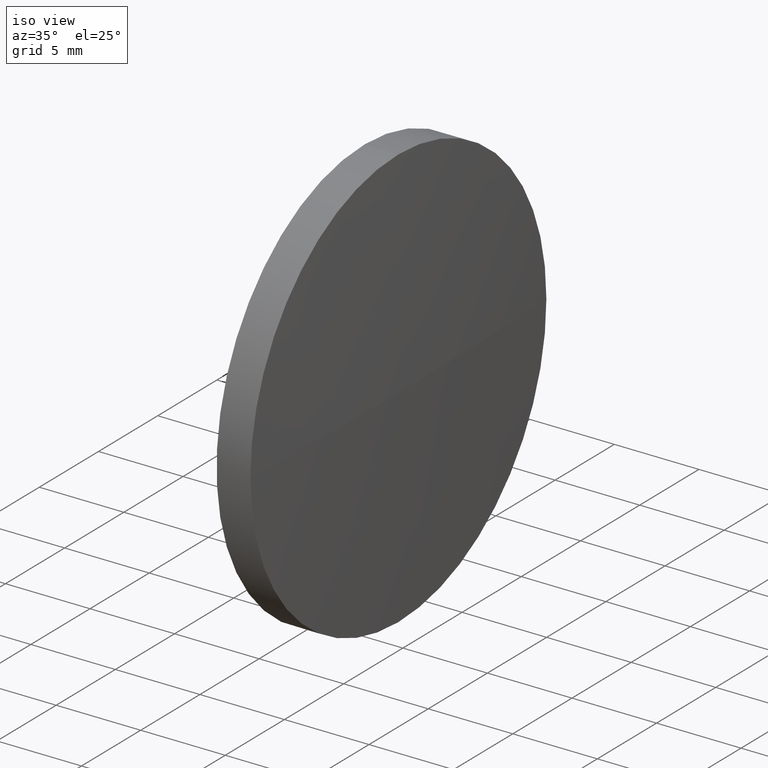
[diagram: clean part render]
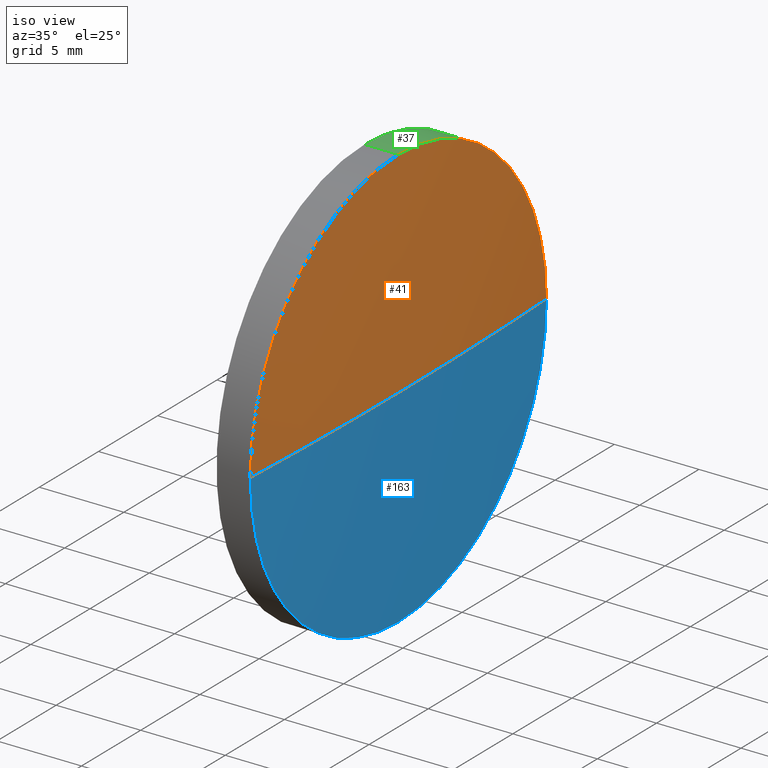
[diagram: same view with three faces highlighted in distinct colors, each labeled with its STEP entity id]
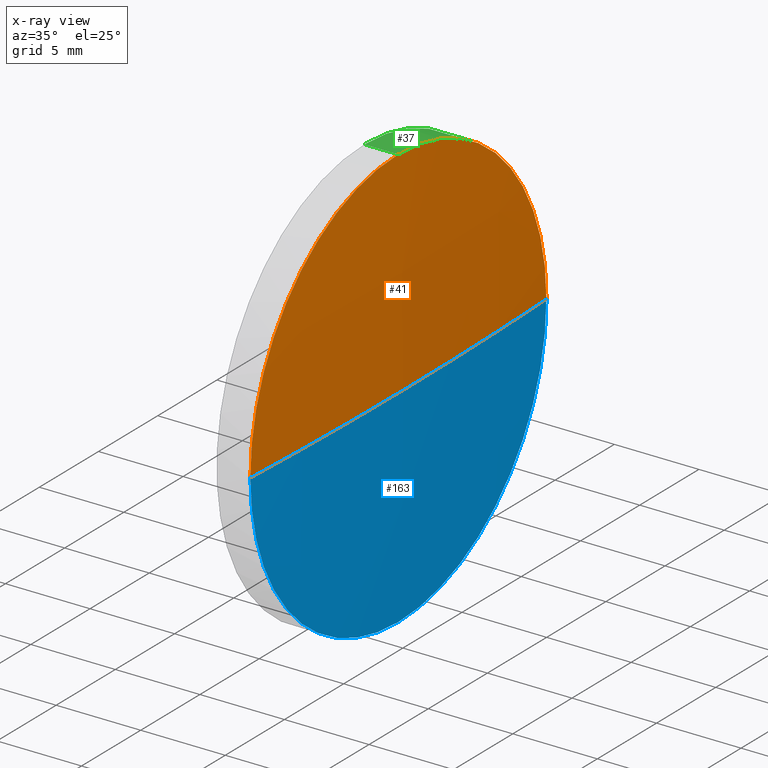
[diagram: x-ray of the same camera — body ghosted, the three highlighted faces saturated]
A machine part, iso view with three faces highlighted in distinct colors.
The next image is the same camera in x-ray (body ghosted, the three faces saturated) — at least one of them is partly hidden behind the body in this view.
Their STEP definitions:

[orange] entity #41 — the highlighted spherical surface has radius 260.567 mm.
#5 = CARTESIAN_POINT ( 'NONE',  ( 593.7743167103306000, 81.37318732975506900, 0.0000000000000000000 ) ) ;
#6 = AXIS2_PLACEMENT_3D ( 'NONE', #5, #78, #93 ) ;
#7 = DIRECTION ( 'NONE',  ( -1.000000000000000000, -0.0000000000000000000, -0.0000000000000000000 ) ) ;
#10 = CARTESIAN_POINT ( 'NONE',  ( 594.0743167103306600, 81.37318732975566600, 0.0000000000000000000 ) ) ;
#23 = CARTESIAN_POINT ( 'NONE',  ( 593.7743167103306000, 93.87318732975502700, 1.530808498934111500E-015 ) ) ;
#25 = CIRCLE ( 'NONE', #6, 12.49999999999999600 ) ;
#28 = EDGE_CURVE ( 'NONE', #150, #176, #95, .T. ) ;
#32 = ORIENTED_EDGE ( 'NONE', *, *, #134, .T. ) ;
#41 = ADVANCED_FACE ( 'NONE', ( #132 ), #63, .T. ) ;
#47 = VERTEX_POINT ( 'NONE', #76 ) ;
#48 = CIRCLE ( 'NONE', #68, 12.49999999999999600 ) ;
#51 = DIRECTION ( 'NONE',  ( -1.000000000000000000, 0.0000000000000000000, 0.0000000000000000000 ) ) ;
#55 = DIRECTION ( 'NONE',  ( 0.0000000000000000000, -1.000000000000000000, -1.224646799147353500E-016 ) ) ;
#56 = CARTESIAN_POINT ( 'NONE',  ( 333.5076500436664400, 81.37318732975568000, 0.0000000000000000000 ) ) ;
#62 = AXIS2_PLACEMENT_3D ( 'NONE', #178, #106, #51 ) ;
#63 = SPHERICAL_SURFACE ( 'NONE', #94, 260.5666666666641600 ) ;
#66 = ORIENTED_EDGE ( 'NONE', *, *, #123, .F. ) ;
#68 = AXIS2_PLACEMENT_3D ( 'NONE', #70, #7, #128 ) ;
#70 = CARTESIAN_POINT ( 'NONE',  ( 593.7743167103306000, 81.37318732975506900, 0.0000000000000000000 ) ) ;
#73 = VERTEX_POINT ( 'NONE', #23 ) ;
#74 = AXIS2_PLACEMENT_3D ( 'NONE', #56, #145, #55 ) ;
#76 = CARTESIAN_POINT ( 'NONE',  ( 593.7743167103306000, 81.37318732975506900, 12.49999999999999600 ) ) ;
#78 = DIRECTION ( 'NONE',  ( -1.000000000000000000, -0.0000000000000000000, -0.0000000000000000000 ) ) ;
#89 = DIRECTION ( 'NONE',  ( 0.0000000000000000000, 0.0000000000000000000, 1.000000000000000000 ) ) ;
#93 = DIRECTION ( 'NONE',  ( 0.0000000000000000000, 0.0000000000000000000, 1.000000000000000000 ) ) ;
#94 = AXIS2_PLACEMENT_3D ( 'NONE', #151, #89, #175 ) ;
#95 = CIRCLE ( 'NONE', #62, 260.5666666666641600 ) ;
#105 = ORIENTED_EDGE ( 'NONE', *, *, #107, .F. ) ;
#106 = DIRECTION ( 'NONE',  ( 0.0000000000000000000, 0.0000000000000000000, -1.000000000000000000 ) ) ;
#107 = EDGE_CURVE ( 'NONE', #176, #47, #25, .T. ) ;
#108 = CARTESIAN_POINT ( 'NONE',  ( 593.7743167103306000, 68.87318732975572300, 0.0000000000000000000 ) ) ;
#123 = EDGE_CURVE ( 'NONE', #47, #73, #48, .T. ) ;
#128 = DIRECTION ( 'NONE',  ( 0.0000000000000000000, 0.0000000000000000000, 1.000000000000000000 ) ) ;
#132 = FACE_OUTER_BOUND ( 'NONE', #156, .T. ) ;
#134 = EDGE_CURVE ( 'NONE', #150, #73, #172, .T. ) ;
#145 = DIRECTION ( 'NONE',  ( 0.0000000000000000000, -1.224646799147353200E-016, 1.000000000000000000 ) ) ;
#150 = VERTEX_POINT ( 'NONE', #10 ) ;
#151 = CARTESIAN_POINT ( 'NONE',  ( 333.5076500436664400, 81.37318732975568000, 0.0000000000000000000 ) ) ;
#152 = ORIENTED_EDGE ( 'NONE', *, *, #28, .F. ) ;
#156 = EDGE_LOOP ( 'NONE', ( #152, #32, #66, #105 ) ) ;
#172 = CIRCLE ( 'NONE', #74, 260.5666666666641600 ) ;
#175 = DIRECTION ( 'NONE',  ( 0.0000000000000000000, -1.000000000000000000, 0.0000000000000000000 ) ) ;
#176 = VERTEX_POINT ( 'NONE', #108 ) ;
#178 = CARTESIAN_POINT ( 'NONE',  ( 333.5076500436664400, 81.37318732975568000, 0.0000000000000000000 ) ) ;

[blue] entity #163 — the highlighted spherical surface has radius 260.567 mm.
#3 = AXIS2_PLACEMENT_3D ( 'NONE', #91, #53, #124 ) ;
#10 = CARTESIAN_POINT ( 'NONE',  ( 594.0743167103306600, 81.37318732975566600, 0.0000000000000000000 ) ) ;
#19 = CIRCLE ( 'NONE', #3, 12.49999999999999600 ) ;
#23 = CARTESIAN_POINT ( 'NONE',  ( 593.7743167103306000, 93.87318732975502700, 1.530808498934111500E-015 ) ) ;
#28 = EDGE_CURVE ( 'NONE', #150, #176, #95, .T. ) ;
#33 = AXIS2_PLACEMENT_3D ( 'NONE', #165, #155, #77 ) ;
#34 = SPHERICAL_SURFACE ( 'NONE', #33, 260.5666666666641600 ) ;
#51 = DIRECTION ( 'NONE',  ( -1.000000000000000000, 0.0000000000000000000, 0.0000000000000000000 ) ) ;
#53 = DIRECTION ( 'NONE',  ( -1.000000000000000000, -0.0000000000000000000, -0.0000000000000000000 ) ) ;
#55 = DIRECTION ( 'NONE',  ( 0.0000000000000000000, -1.000000000000000000, -1.224646799147353500E-016 ) ) ;
#56 = CARTESIAN_POINT ( 'NONE',  ( 333.5076500436664400, 81.37318732975568000, 0.0000000000000000000 ) ) ;
#59 = EDGE_CURVE ( 'NONE', #75, #176, #61, .T. ) ;
#61 = CIRCLE ( 'NONE', #185, 12.49999999999999600 ) ;
#62 = AXIS2_PLACEMENT_3D ( 'NONE', #178, #106, #51 ) ;
#73 = VERTEX_POINT ( 'NONE', #23 ) ;
#74 = AXIS2_PLACEMENT_3D ( 'NONE', #56, #145, #55 ) ;
#75 = VERTEX_POINT ( 'NONE', #153 ) ;
#77 = DIRECTION ( 'NONE',  ( 0.0000000000000000000, -1.000000000000000000, 0.0000000000000000000 ) ) ;
#88 = FACE_OUTER_BOUND ( 'NONE', #96, .T. ) ;
#90 = EDGE_CURVE ( 'NONE', #73, #75, #19, .T. ) ;
#91 = CARTESIAN_POINT ( 'NONE',  ( 593.7743167103306000, 81.37318732975506900, 0.0000000000000000000 ) ) ;
#95 = CIRCLE ( 'NONE', #62, 260.5666666666641600 ) ;
#96 = EDGE_LOOP ( 'NONE', ( #114, #133, #184, #130 ) ) ;
#106 = DIRECTION ( 'NONE',  ( 0.0000000000000000000, 0.0000000000000000000, -1.000000000000000000 ) ) ;
#108 = CARTESIAN_POINT ( 'NONE',  ( 593.7743167103306000, 68.87318732975572300, 0.0000000000000000000 ) ) ;
#114 = ORIENTED_EDGE ( 'NONE', *, *, #134, .F. ) ;
#124 = DIRECTION ( 'NONE',  ( 0.0000000000000000000, 0.0000000000000000000, 1.000000000000000000 ) ) ;
#126 = DIRECTION ( 'NONE',  ( -1.000000000000000000, -0.0000000000000000000, -0.0000000000000000000 ) ) ;
#130 = ORIENTED_EDGE ( 'NONE', *, *, #90, .F. ) ;
#133 = ORIENTED_EDGE ( 'NONE', *, *, #28, .T. ) ;
#134 = EDGE_CURVE ( 'NONE', #150, #73, #172, .T. ) ;
#145 = DIRECTION ( 'NONE',  ( 0.0000000000000000000, -1.224646799147353200E-016, 1.000000000000000000 ) ) ;
#150 = VERTEX_POINT ( 'NONE', #10 ) ;
#153 = CARTESIAN_POINT ( 'NONE',  ( 593.7743167103306000, 81.37318732975506900, -12.49999999999999600 ) ) ;
#155 = DIRECTION ( 'NONE',  ( 0.0000000000000000000, 0.0000000000000000000, 1.000000000000000000 ) ) ;
#157 = CARTESIAN_POINT ( 'NONE',  ( 593.7743167103306000, 81.37318732975506900, 0.0000000000000000000 ) ) ;
#163 = ADVANCED_FACE ( 'NONE', ( #88 ), #34, .T. ) ;
#165 = CARTESIAN_POINT ( 'NONE',  ( 333.5076500436664400, 81.37318732975568000, 0.0000000000000000000 ) ) ;
#172 = CIRCLE ( 'NONE', #74, 260.5666666666641600 ) ;
#176 = VERTEX_POINT ( 'NONE', #108 ) ;
#178 = CARTESIAN_POINT ( 'NONE',  ( 333.5076500436664400, 81.37318732975568000, 0.0000000000000000000 ) ) ;
#179 = DIRECTION ( 'NONE',  ( 0.0000000000000000000, 0.0000000000000000000, 1.000000000000000000 ) ) ;
#184 = ORIENTED_EDGE ( 'NONE', *, *, #59, .F. ) ;
#185 = AXIS2_PLACEMENT_3D ( 'NONE', #157, #126, #179 ) ;

[green] entity #37 — the highlighted cylindrical surface (partial cylindrical patch) has radius 12.5 mm, axis along (-1, -0, -0).
#3 = AXIS2_PLACEMENT_3D ( 'NONE', #91, #53, #124 ) ;
#7 = DIRECTION ( 'NONE',  ( -1.000000000000000000, -0.0000000000000000000, -0.0000000000000000000 ) ) ;
#8 = LINE ( 'NONE', #52, #160 ) ;
#19 = CIRCLE ( 'NONE', #3, 12.49999999999999600 ) ;
#23 = CARTESIAN_POINT ( 'NONE',  ( 593.7743167103306000, 93.87318732975502700, 1.530808498934111500E-015 ) ) ;
#35 = ORIENTED_EDGE ( 'NONE', *, *, #180, .F. ) ;
#36 = CARTESIAN_POINT ( 'NONE',  ( 589.4087008075696300, 81.37318732975506900, 0.0000000000000000000 ) ) ;
#37 = ADVANCED_FACE ( 'NONE', ( #79 ), #173, .T. ) ;
#42 = CARTESIAN_POINT ( 'NONE',  ( 591.7743167103306000, 81.37318732975506900, -12.49999999999999600 ) ) ;
#47 = VERTEX_POINT ( 'NONE', #76 ) ;
#48 = CIRCLE ( 'NONE', #68, 12.49999999999999600 ) ;
#50 = CARTESIAN_POINT ( 'NONE',  ( 591.7743167103306000, 81.37318732975506900, 12.49999999999999600 ) ) ;
#52 = CARTESIAN_POINT ( 'NONE',  ( 589.4087008075696300, 81.37318732975506900, -12.49999999999999600 ) ) ;
#53 = DIRECTION ( 'NONE',  ( -1.000000000000000000, -0.0000000000000000000, -0.0000000000000000000 ) ) ;
#65 = ORIENTED_EDGE ( 'NONE', *, *, #90, .T. ) ;
#67 = DIRECTION ( 'NONE',  ( -1.000000000000000000, -0.0000000000000000000, -0.0000000000000000000 ) ) ;
#68 = AXIS2_PLACEMENT_3D ( 'NONE', #70, #7, #128 ) ;
#70 = CARTESIAN_POINT ( 'NONE',  ( 593.7743167103306000, 81.37318732975506900, 0.0000000000000000000 ) ) ;
#71 = ORIENTED_EDGE ( 'NONE', *, *, #174, .T. ) ;
#72 = VECTOR ( 'NONE', #67, 1000.000000000000000 ) ;
#73 = VERTEX_POINT ( 'NONE', #23 ) ;
#75 = VERTEX_POINT ( 'NONE', #153 ) ;
#76 = CARTESIAN_POINT ( 'NONE',  ( 593.7743167103306000, 81.37318732975506900, 12.49999999999999600 ) ) ;
#79 = FACE_OUTER_BOUND ( 'NONE', #158, .T. ) ;
#80 = ORIENTED_EDGE ( 'NONE', *, *, #123, .T. ) ;
#84 = VERTEX_POINT ( 'NONE', #50 ) ;
#86 = LINE ( 'NONE', #125, #72 ) ;
#90 = EDGE_CURVE ( 'NONE', #73, #75, #19, .T. ) ;
#91 = CARTESIAN_POINT ( 'NONE',  ( 593.7743167103306000, 81.37318732975506900, 0.0000000000000000000 ) ) ;
#101 = AXIS2_PLACEMENT_3D ( 'NONE', #186, #115, #183 ) ;
#109 = CIRCLE ( 'NONE', #101, 12.49999999999999600 ) ;
#115 = DIRECTION ( 'NONE',  ( -1.000000000000000000, -0.0000000000000000000, -0.0000000000000000000 ) ) ;
#118 = VERTEX_POINT ( 'NONE', #42 ) ;
#123 = EDGE_CURVE ( 'NONE', #47, #73, #48, .T. ) ;
#124 = DIRECTION ( 'NONE',  ( 0.0000000000000000000, 0.0000000000000000000, 1.000000000000000000 ) ) ;
#125 = CARTESIAN_POINT ( 'NONE',  ( 589.4087008075696300, 81.37318732975506900, 12.49999999999999600 ) ) ;
#128 = DIRECTION ( 'NONE',  ( 0.0000000000000000000, 0.0000000000000000000, 1.000000000000000000 ) ) ;
#138 = DIRECTION ( 'NONE',  ( -1.000000000000000000, -0.0000000000000000000, -0.0000000000000000000 ) ) ;
#140 = DIRECTION ( 'NONE',  ( 0.0000000000000000000, 0.0000000000000000000, 1.000000000000000000 ) ) ;
#141 = ORIENTED_EDGE ( 'NONE', *, *, #146, .F. ) ;
#146 = EDGE_CURVE ( 'NONE', #47, #84, #86, .T. ) ;
#153 = CARTESIAN_POINT ( 'NONE',  ( 593.7743167103306000, 81.37318732975506900, -12.49999999999999600 ) ) ;
#158 = EDGE_LOOP ( 'NONE', ( #65, #71, #35, #141, #80 ) ) ;
#160 = VECTOR ( 'NONE', #167, 1000.000000000000000 ) ;
#164 = AXIS2_PLACEMENT_3D ( 'NONE', #36, #138, #140 ) ;
#167 = DIRECTION ( 'NONE',  ( -1.000000000000000000, -0.0000000000000000000, -0.0000000000000000000 ) ) ;
#173 = CYLINDRICAL_SURFACE ( 'NONE', #164, 12.49999999999999600 ) ;
#174 = EDGE_CURVE ( 'NONE', #75, #118, #8, .T. ) ;
#180 = EDGE_CURVE ( 'NONE', #84, #118, #109, .T. ) ;
#183 = DIRECTION ( 'NONE',  ( 0.0000000000000000000, 0.0000000000000000000, 1.000000000000000000 ) ) ;
#186 = CARTESIAN_POINT ( 'NONE',  ( 591.7743167103306000, 81.37318732975506900, 0.0000000000000000000 ) ) ;